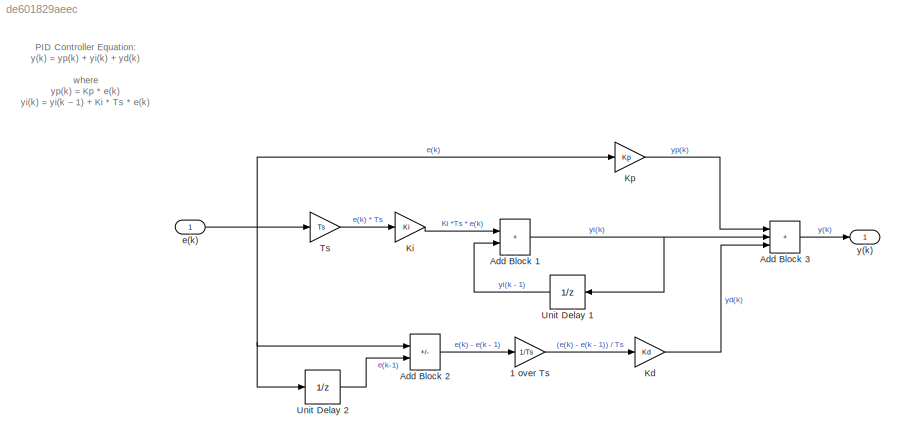
MODEL slx_de601829aeec
KIND model
CONFIG AbsTol = auto
CONFIG EnableMultiTasking = off
CONFIG FixedStep = 0.01
CONFIG MaxStep = auto
CONFIG MinStep = auto
CONFIG RelTol = 1e-3
CONFIG SampleTimeConstraint = Unconstrained
CONFIG SolverName = FixedStepDiscrete
CONFIG StartTime = 0.0
CONFIG StopTime = 60
BLOCK [Gain] 1 over Ts
  Gain = 1/Ts
BLOCK [Sum] Add Block 1
  IconShape = rectangular
  Ports = [2, 1]
BLOCK [Sum] Add Block 2
  IconShape = rectangular
  Inputs = +-
  Ports = [2, 1]
BLOCK [Sum] Add Block 3
  IconShape = rectangular
  Inputs = +++
  Ports = [3, 1]
BLOCK [Gain] Kd
  Gain = Kd
BLOCK [Gain] Ki
  Gain = Ki
BLOCK [Gain] Kp
  Gain = Kp
BLOCK [Gain] Ts
  Gain = Ts
BLOCK [UnitDelay] Unit Delay 1
  HasFrameUpgradeWarning = on
  SampleTime = 0.01
BLOCK [UnitDelay] Unit Delay 2
  HasFrameUpgradeWarning = on
  SampleTime = 0.01
BLOCK [Inport] e(k)
BLOCK [Outport] y(k)
ANNOTATION (root): PID Controller Equation: y(k) = yp(k) + yi(k) + yd(k) where yp(k) = Kp * e(k) yi(k) = yi(k − 1) + Ki * Ts * e(k) yd(k) = (Kd / Ts)[e(k) − e(k − 1)] (P) Proportional (I) Integral (D) Differential (Ts) Sampling Time 0.01
LINE 1 over Ts:1 -> Kd:1
NET Add Block 1:1 -> Add Block 3:2, Unit Delay 1:1
LINE Add Block 2:1 -> 1 over Ts:1
LINE Add Block 3:1 -> y(k):1
LINE Kd:1 -> Add Block 3:3
LINE Ki:1 -> Add Block 1:1
LINE Kp:1 -> Add Block 3:1
LINE Ts:1 -> Ki:1
LINE Unit Delay 1:1 -> Add Block 1:2
LINE Unit Delay 2:1 -> Add Block 2:2
NET e(k):1 -> Add Block 2:1, Kp:1, Ts:1, Unit Delay 2:1
note: NET lines group one-source signal fan-out (src -> all destinations, sorted); 1:1 wires keep LINE
